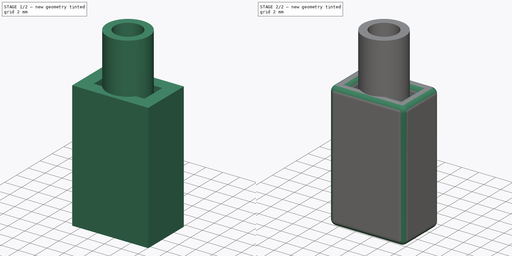
[diagram: build sequence overview — one tinted view per stage of 2, left to right]
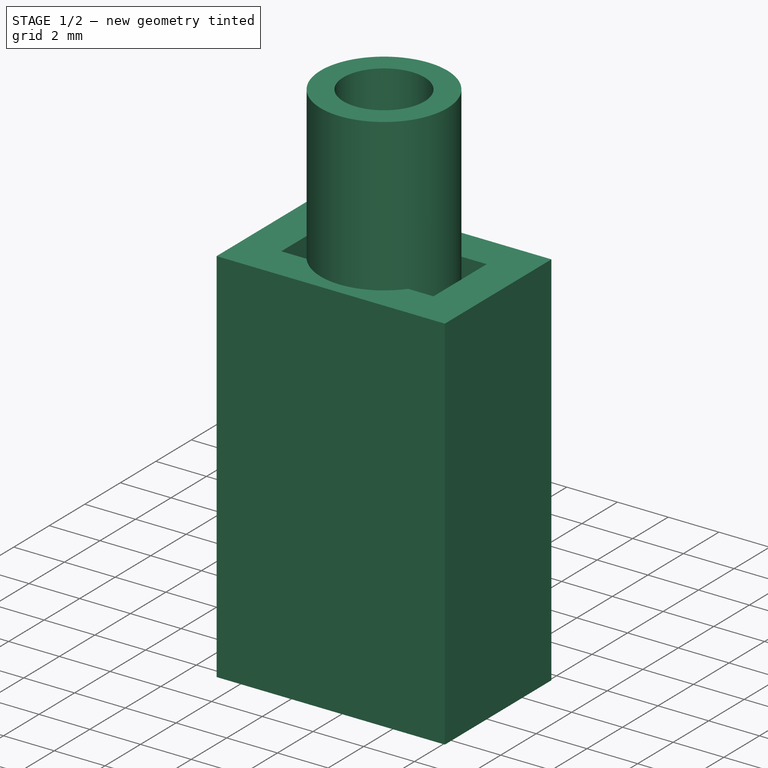
[diagram: stage 1 of 2 — iso view after this stage's code; geometry added in this stage tinted green]
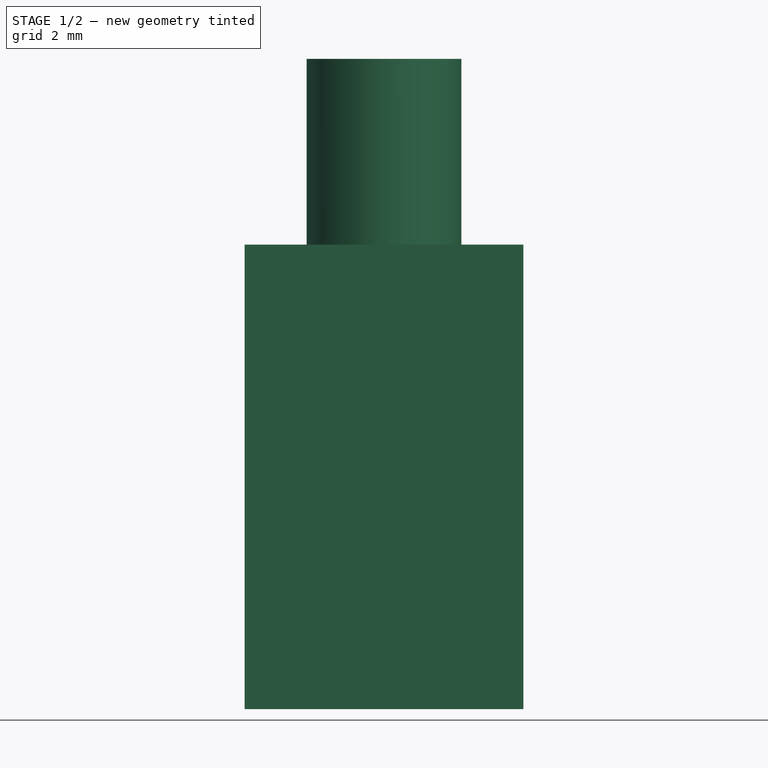
[diagram: stage 1 of 2 — front view after this stage's code; geometry added in this stage tinted green]
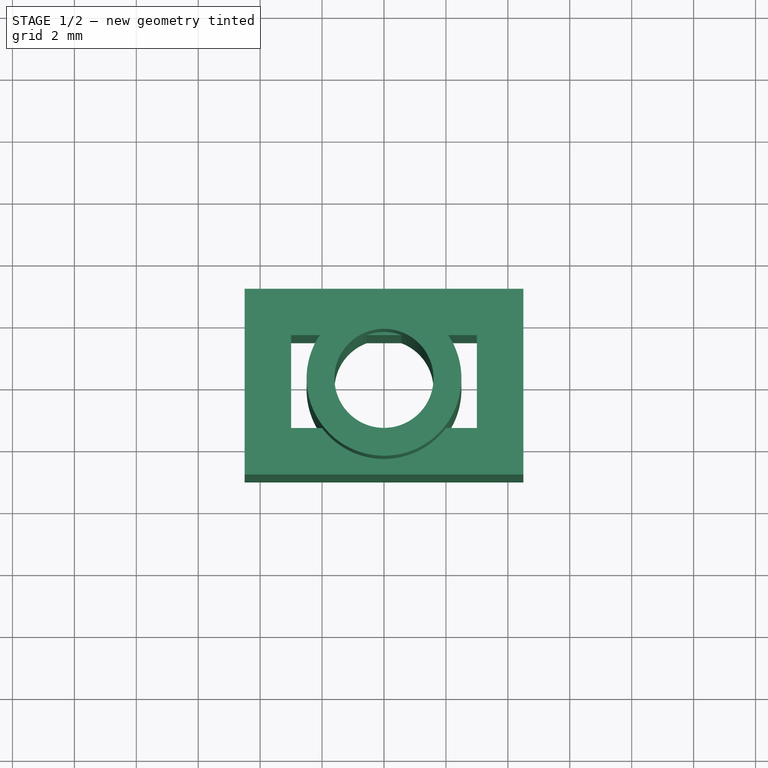
[diagram: stage 1 of 2 — top view after this stage's code; geometry added in this stage tinted green]
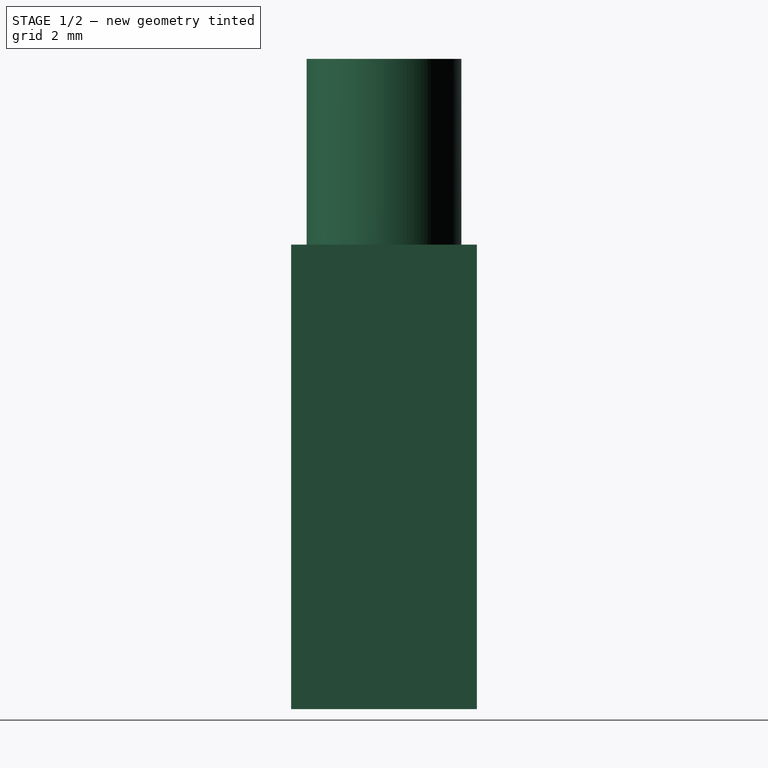
[diagram: stage 1 of 2 — right view after this stage's code; geometry added in this stage tinted green]
FCSTD DOCUMENT  (FreeCAD 1.1R38794 (Git))
Label: belt_fixer
License: All rights reserved
LicenseURL: https://en.wikipedia.org/wiki/All_rights_reserved
objects: Sketcher::SketchObject×2, PartDesign::Pad×2, PartDesign::Body×2, PartDesign::Fillet×1, App::Link×1
note: 15 computed .brp shape members not serialized (recipe doc carries the construction recipe); baked Part::Feature solids carry a one-line shape summary decoded from their .brp
EXTERNAL_REF file=Masterfile.FCStd obj=Spreadsheet

FEATURE [Sketcher::SketchObject] Sketch
  ArcFitTolerance = 1e-06
  AttachmentSupport = -> [XY_Plane]
  FullyConstrained = true
  MakeInternals = false
  MapMode = 5
  expr: Constraints[18] = <<LinkDimensions>>.bfWidth
  expr: Constraints[19] = <<LinkDimensions>>.bfLength
  expr: Constraints[20] = <<LinkDimensions>>.bfThickness
  expr: Constraints[21] = <<LinkDimensions>>.bfThickness
  sketch-geometry (8):
    g0: LineSegment StartX=-3 StartY=1.5 StartZ=0 EndX=-3 EndY=-1.5 EndZ=0
    g1: LineSegment StartX=-3 StartY=-1.5 StartZ=0 EndX=3 EndY=-1.5 EndZ=0
    g2: LineSegment StartX=3 StartY=-1.5 StartZ=0 EndX=3 EndY=1.5 EndZ=0
    g3: LineSegment StartX=3 StartY=1.5 StartZ=0 EndX=-3 EndY=1.5 EndZ=0
    g4: LineSegment StartX=-4.5 StartY=3 StartZ=0 EndX=-4.5 EndY=-3 EndZ=0
    g5: LineSegment StartX=-4.5 StartY=-3 StartZ=0 EndX=4.5 EndY=-3 EndZ=0
    g6: LineSegment StartX=4.5 StartY=-3 StartZ=0 EndX=4.5 EndY=3 EndZ=0
    g7: LineSegment StartX=4.5 StartY=3 StartZ=0 EndX=-4.5 EndY=3 EndZ=0
  constraints (22):
    c: Coincident(g0,g1)
    c: Coincident(g1,g2)
    c: Coincident(g2,g3)
    c: Coincident(g3,g0)
    c: Vertical(g0)
    c: Vertical(g2)
    c: Horizontal(g1)
    c: Horizontal(g3)
    c: Coincident(g4,g5)
    c: Coincident(g5,g6)
    c: Coincident(g6,g7)
    c: Coincident(g7,g4)
    c: Vertical(g4)
    c: Vertical(g6)
    c: Horizontal(g5)
    c: Horizontal(g7)
    c: Symmetric(g0,g2,g-1)
    c: Symmetric(g4,g6,g-1)
    c: DistanceX(g3,g3) = 6
    c: DistanceY(g2,g2) = 3
    c: DistanceX(g2,g6) = 1.5
    c: DistanceY(g5,g1) = 1.5
FEATURE [PartDesign::Pad] Pad
  Direction = (0,0,1)
  Length = 15
  Length2 = 10
  Profile = -> Sketch
  ReferenceAxis = -> Sketch [N_Axis]
  Refine = true
  Suppressed = false
  Type = 0
  expr: Length = <<LinkDimensions>>.bfHeight
FEATURE [PartDesign::Body] Body  label="fixer_1"
  AllowCompound = false
  Group = -> [Sketch,Pad,Fillet]
  Origin = -> Origin
  Tip = -> Fillet
FEATURE [App::Link] Link  label="LinkDimensions"
  LinkedObject = -> <external Masterfile.FCStd>#Spreadsheet
FEATURE [Sketcher::SketchObject] Sketch001
  ArcFitTolerance = 1e-06
  AttachmentSupport = -> [XY_Plane001]
  FullyConstrained = true
  MakeInternals = false
  MapMode = 5
  sketch-geometry (2):
    g0: Circle CenterX=0 CenterY=0 CenterZ=0 NormalX=0 NormalY=0 NormalZ=1 AngleXU=0 Radius=1.6
    g1: Circle CenterX=0 CenterY=0 CenterZ=0 NormalX=0 NormalY=0 NormalZ=1 AngleXU=0 Radius=2.5
  constraints (4):
    c: Coincident(g0,g-1)
    c: Coincident(g1,g0)
    c: Diameter(g1) = 5
    c: Diameter(g0) = 3.2
FEATURE [PartDesign::Pad] Pad001
  Direction = (0,0,1)
  Length = 21
  Length2 = 10
  Profile = -> Sketch001
  ReferenceAxis = -> Sketch001 [N_Axis]
  Refine = true
  Suppressed = false
  Type = 0
FEATURE [PartDesign::Body] Body001  label="fixer_2"
  AllowCompound = false
  Group = -> [Sketch001,Pad001]
  Origin = -> Origin001
  Tip = -> Pad001
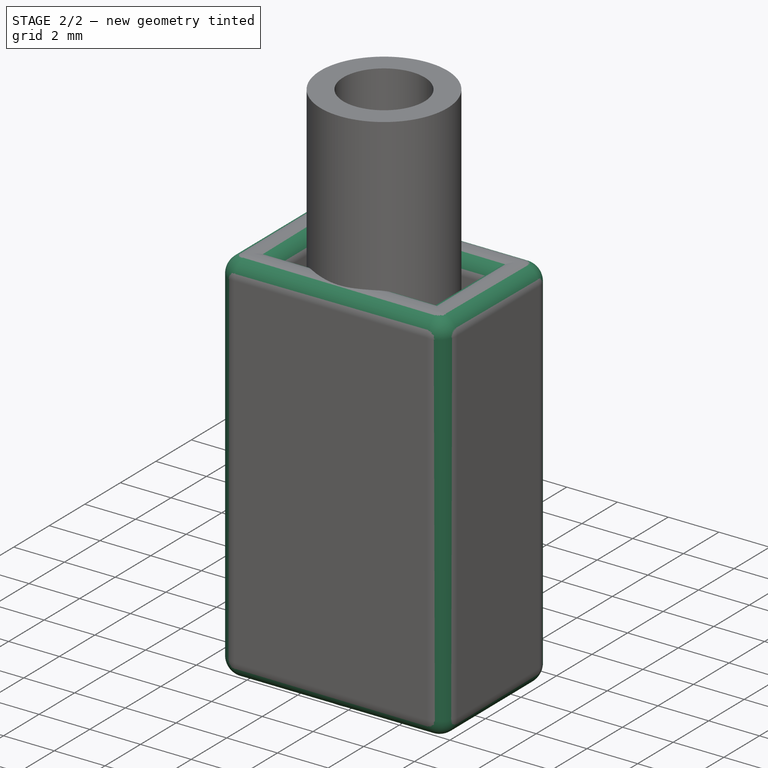
[diagram: stage 2 of 2 — iso view after this stage's code; geometry added in this stage tinted green]
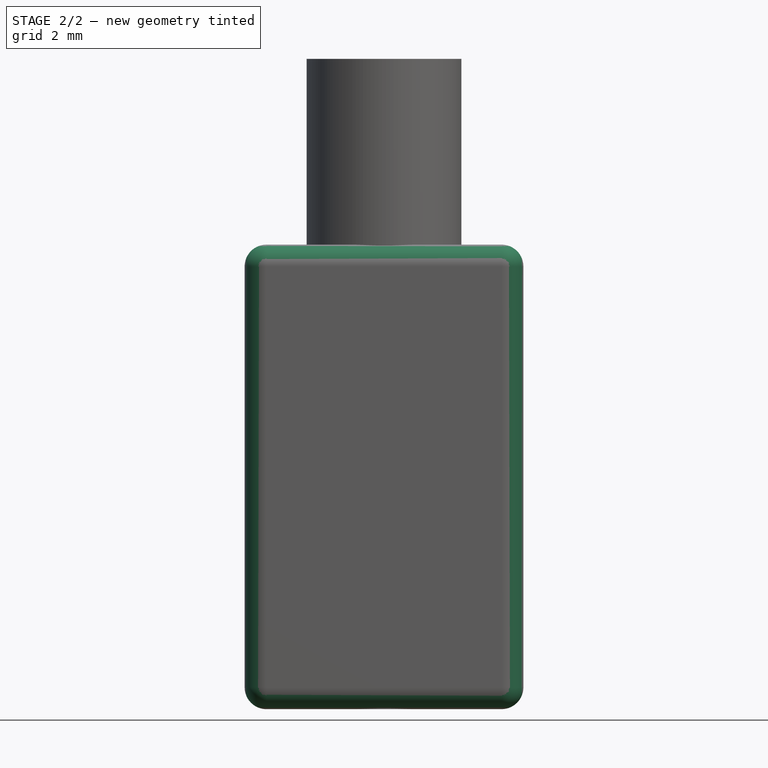
[diagram: stage 2 of 2 — front view after this stage's code; geometry added in this stage tinted green]
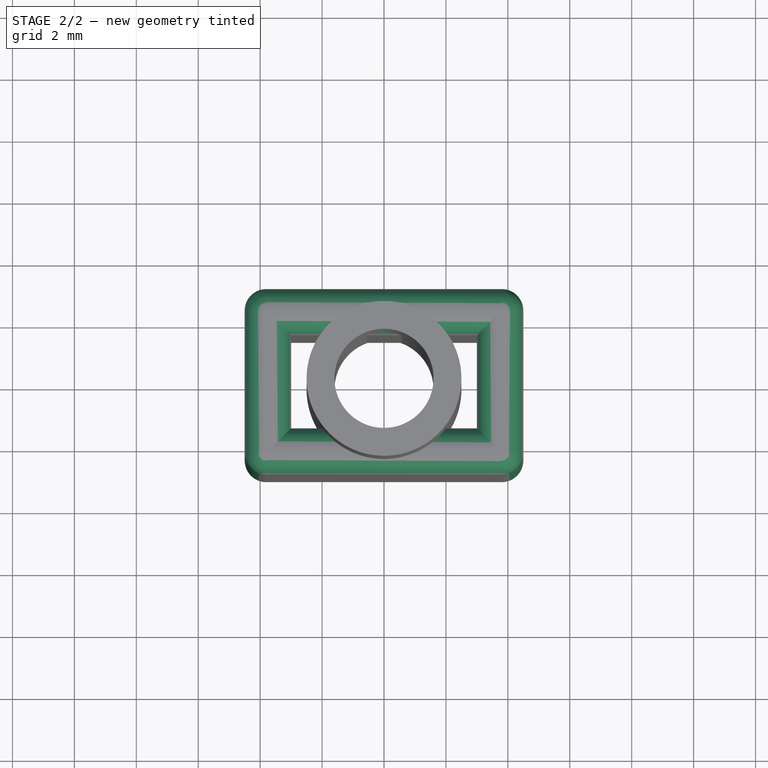
[diagram: stage 2 of 2 — top view after this stage's code; geometry added in this stage tinted green]
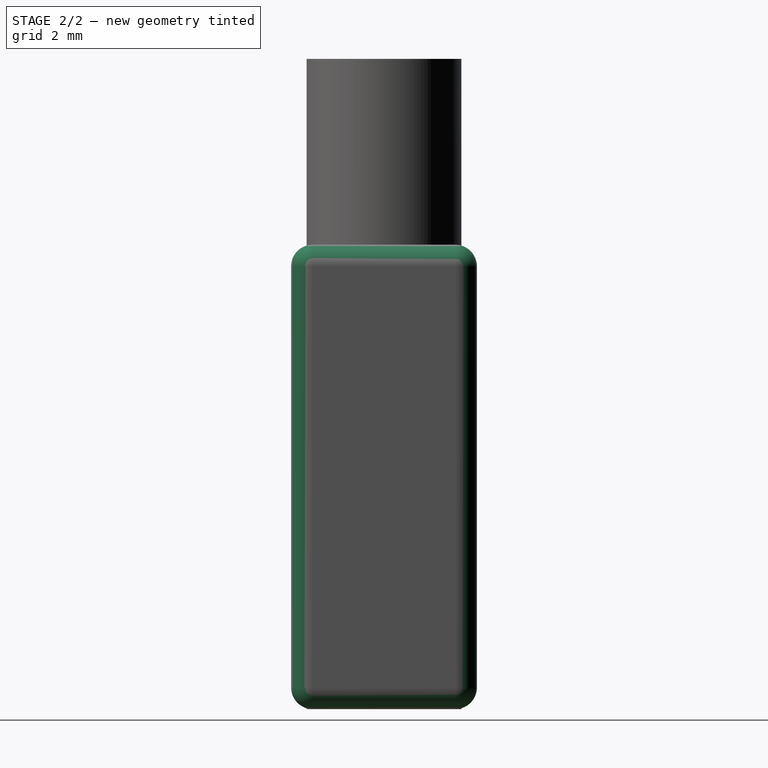
[diagram: stage 2 of 2 — right view after this stage's code; geometry added in this stage tinted green]
FEATURE [PartDesign::Fillet] Fillet
  Base = -> Pad [Face1,Face4,Face10,Face9,Face2,Face3]
  BaseFeature = -> Pad
  Radius = 0.7
  Refine = true
  SupportTransform = false
  Suppressed = false
  UseAllEdges = false
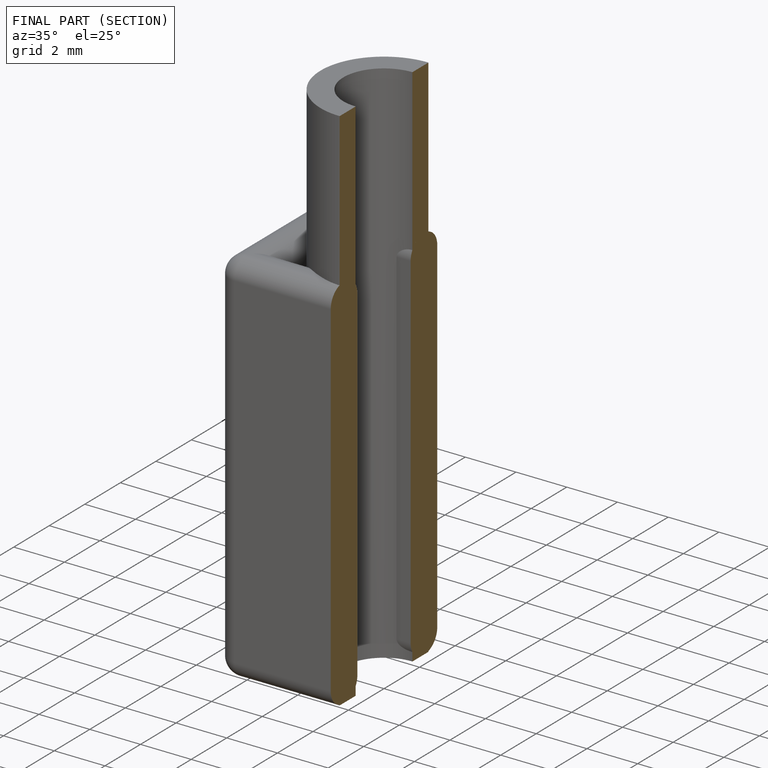
[diagram: finished part — half-section view (interior)]
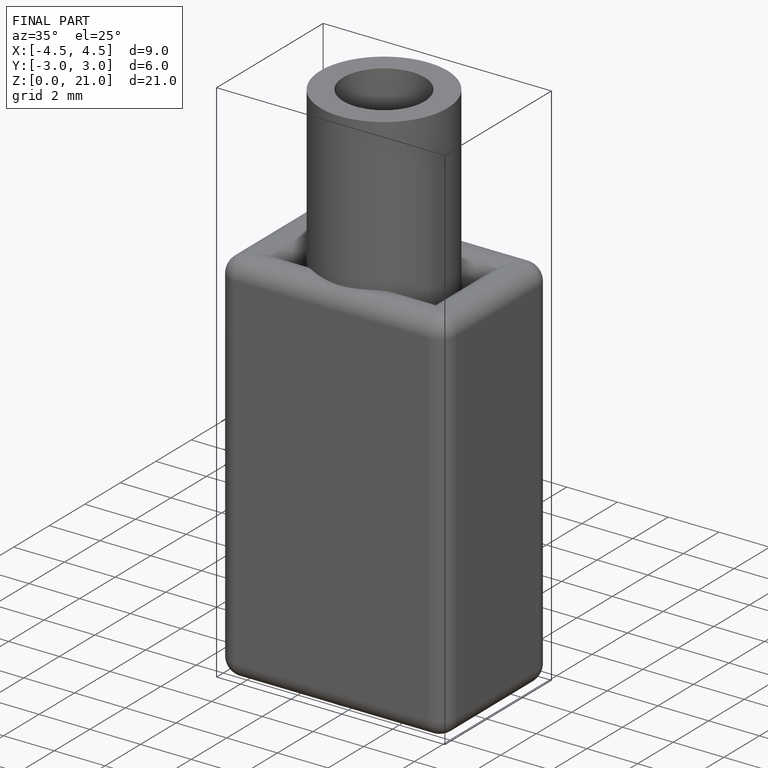
[diagram: finished part — iso view with bounding-box wireframe]
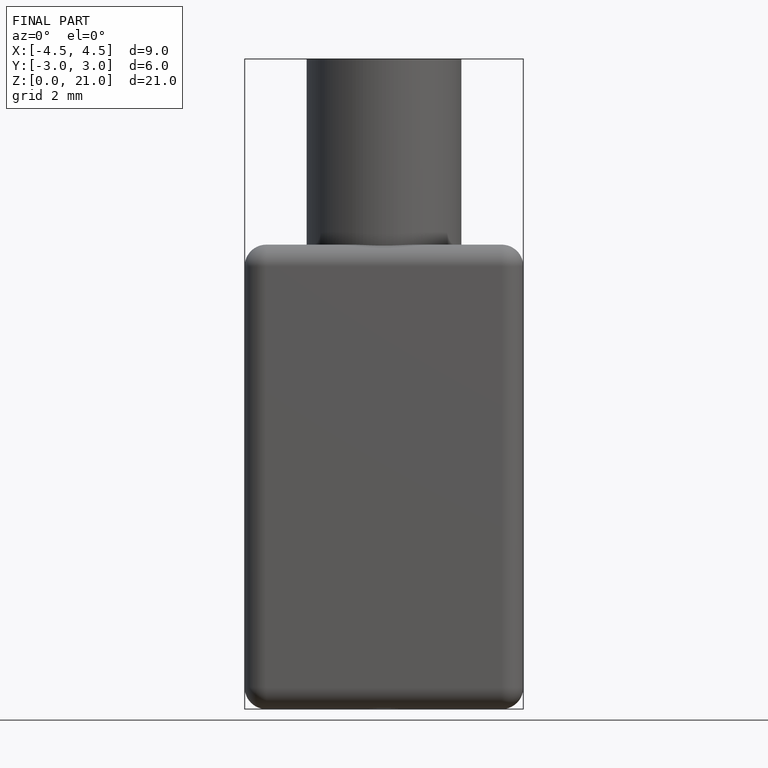
[diagram: finished part — front view with bounding-box wireframe]
